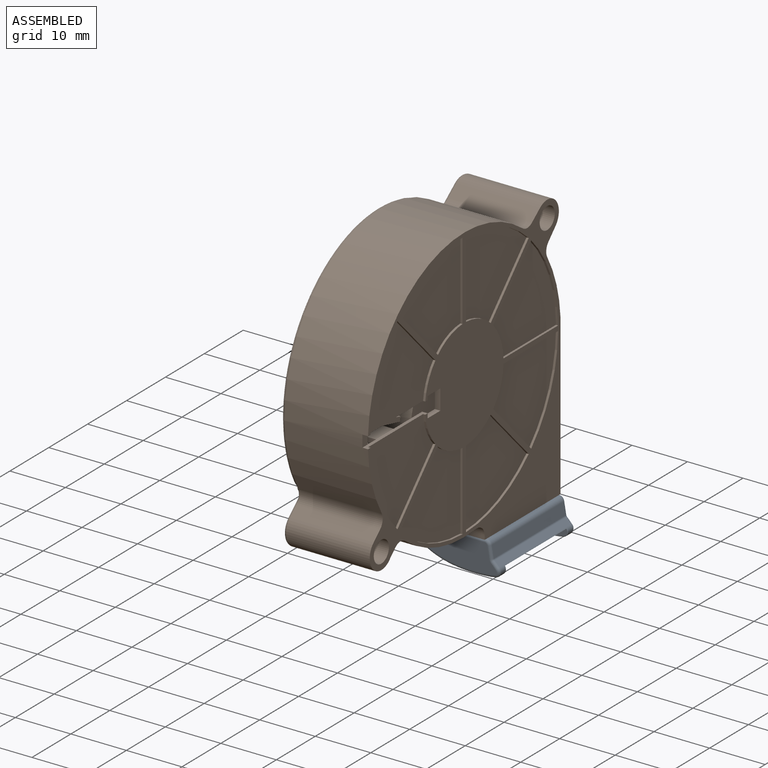
[diagram: assembled view]
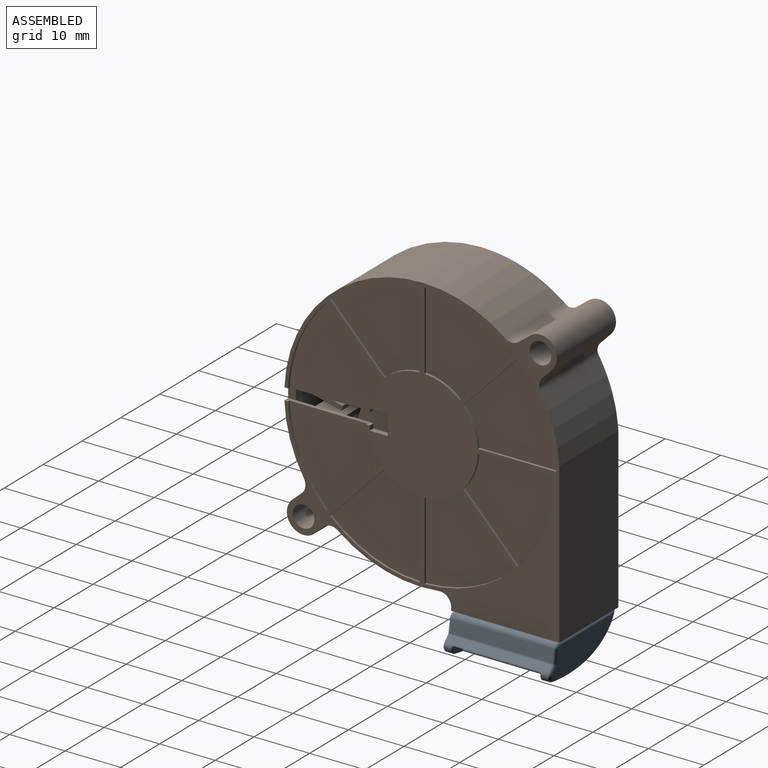
[diagram: assembled view, second angle]
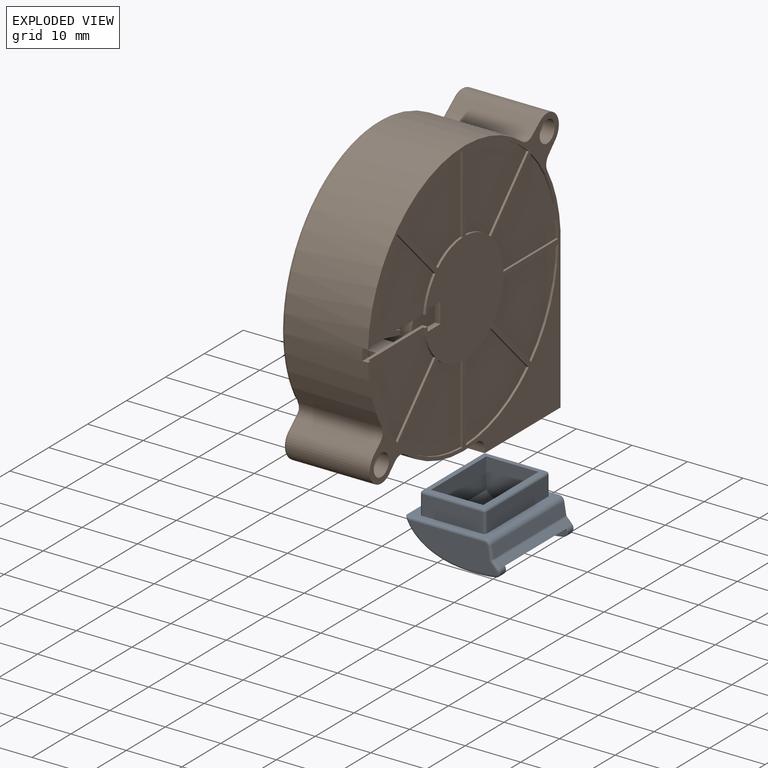
[diagram: exploded view]
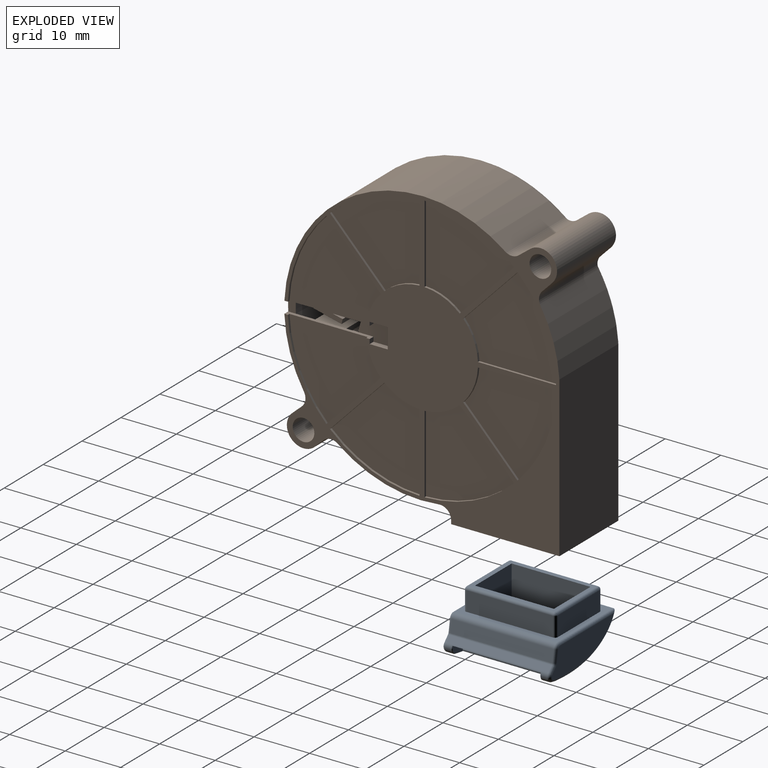
[diagram: exploded view, second angle]
ASSEMBLY  parts=2 mates=3
PART A: 67 faces, bbox 17.1x10.2x19.4 mm
  f0: plane 15.8x5.77mm, normal (0.27,0.96,0), area 94.6mm2, adj f6,f7,f15,f62
  f1: plane 1.2x0.82mm, normal (0.19,-0.98,0), area 1mm2, adj f9,f28,f41,f66
  f2: plane 15.86x5.17mm, normal (0,0,1), area 61.3mm2, adj f36,f37,f39,f40,f41,f42,f43,f56
  f3: plane 15.86x5.17mm, normal (0,0,-1), area 61.3mm2, adj f29,f30,f31,f32,f33,f34,f35,f58
  f4: plane 3.41x0.8mm, normal (0.99,-0.13,0), area 2.4mm2, adj f6,f13,f23,f27
  f5: plane 3.83x0.8mm, normal (0,-1,0), area 3.1mm2, adj f7,f17,f25,f26
  f6: plane 9.51x4.9mm, normal (0,0,-1), area 27.7mm2, adj f0,f4,f9,f13,f14,f15,f25,f27
  f7: plane 9.51x6.1mm, normal (0,0,1), area 33.3mm2, adj f0,f5,f9,f13,f14,f15,f25,f26
  f8: plane 18.4x14.36mm, normal (0,1,0), area 68.5mm2, adj f9,f19,f20,f21,f22,f31,f36,f44
  f9: extruded ~18.4x15.39mm, area 309.8mm2, adj f1,f6,f7,f8,f10,f29,f39,f61
  f10: plane 1.2x0.82mm, normal (0.19,-0.98,0), area 1mm2, adj f9,f28,f30,f64
  f11: plane 18.4x0.93mm, normal (0.72,0.69,0), area 23.8mm2, adj f28,f34,f38,f42
  f12: plane 18.4x2.14mm, normal (0.99,0.17,0), area 40mm2, adj f33,f37,f38,f57
  f13: extruded ~15.8x5.15mm, area 83.6mm2, adj f4,f6,f7,f15,f16,f17,f23,f26
  f14: plane 15.8x0.83mm, normal (-0.99,-0.17,0), area 13.3mm2, adj f6,f7,f25,f60
  f15: cylinder r=5mm len=15.8mm, axis (0,0,-1), area 4.6mm2, adj f0,f6,f7,f13
  f16: plane 14.2x5.42mm, normal (1,0,0), area 76.9mm2, adj f13,f17,f23,f24
  f17: plane 9.4x7.81mm, normal (0,0,1), area 51.6mm2, adj f5,f13,f16,f18,f24,f25,f26
  f18: plane 14.2x4.47mm, normal (-1,0,0), area 63.5mm2, adj f17,f23,f24,f25
  f19: plane 10.8x3.5mm, normal (0,0,-1), area 37.8mm2, adj f8,f46,f52,f55
  f20: plane 15.6x3.5mm, normal (-1,0,0), area 54.6mm2, adj f8,f49,f53,f55
  f21: plane 10.8x3.5mm, normal (0,0,1), area 37.8mm2, adj f8,f44,f48,f49
  f22: plane 15.6x3.5mm, normal (1,0,0), area 54.6mm2, adj f8,f44,f46,f47
  f23: plane 9.4x7.81mm, normal (0,0,-1), area 53.3mm2, adj f4,f13,f16,f18,f24,f25,f27
  f24: plane 15.6x10.8mm, normal (0,1,0), area 35mm2, adj f16,f17,f18,f23,f47,f48,f52,f53
  f25: plane 15.8x1.91mm, normal (-0.64,-0.76,0), area 28.1mm2, adj f5,f6,f7,f14,f17,f18,f23,f27
  f26: plane 3.81x0.8mm, normal (0.99,-0.13,0), area 3.1mm2, adj f5,f7,f13,f17
  f27: plane 5.41x0.8mm, normal (0,-0.71,-0.71), area 5.5mm2, adj f4,f6,f23,f25
  f28: cylinder r=1mm len=18.4mm, axis (0,0,-1), area 7.8mm2, adj f1,f10,f11,f32,f43,f59,f63,f65
  f29: bspline ~17.03x6.29mm, area 13.5mm2, adj f3,f9,f30,f31
  f30: cylinder r=0.5mm len=0.91mm, axis (0.98,0.19,0), area 0.6mm2, adj f3,f10,f29,f32
  f31: cylinder r=0.5mm len=14.36mm, axis (-1,0,0), area 11mm2, adj f3,f8,f29,f58
  f32: torus R=0.5mm, axis (0,0,1), area 1.4mm2, adj f3,f28,f30,f34
  f33: cylinder r=0.5mm len=2.23mm, axis (-0.17,0.99,0), area 1.7mm2, adj f3,f12,f35,f58
  f34: cylinder r=0.5mm len=1.28mm, axis (-0.69,0.72,0), area 1mm2, adj f3,f11,f32,f35
  f35: torus R=1mm, axis (0,0,1), area 0.3mm2, adj f3,f33,f34,f38
  f36: cylinder r=0.5mm len=14.36mm, axis (1,0,0), area 11mm2, adj f2,f8,f39,f56
  f37: cylinder r=0.5mm len=2.23mm, axis (0.17,-0.99,0), area 1.7mm2, adj f2,f12,f40,f56
  f38: cylinder r=0.5mm len=18.4mm, axis (0,0,1), area 5.5mm2, adj f11,f12,f35,f40
  f39: bspline ~17.03x6.29mm, area 13.5mm2, adj f2,f9,f36,f41
  f40: torus R=1mm, axis (0,0,1), area 0.3mm2, adj f2,f37,f38,f42
  f41: cylinder r=0.5mm len=0.91mm, axis (-0.98,-0.19,0), area 0.6mm2, adj f1,f2,f39,f43
  f42: cylinder r=0.5mm len=1.28mm, axis (0.69,-0.72,0), area 1mm2, adj f2,f11,f40,f43
  f43: torus R=0.5mm, axis (0,0,1), area 1.4mm2, adj f2,f28,f41,f42
  f44: cylinder r=0.5mm len=3.5mm, axis (0,1,0), area 2.7mm2, adj f8,f21,f22,f45
  f45: sphere r=0.5mm, area 0.2mm2, adj f44,f47,f48
  f46: cylinder r=0.5mm len=3.5mm, axis (0,-1,0), area 2.7mm2, adj f8,f19,f22,f50
  f47: cylinder r=0.5mm len=15.6mm, axis (0,0,1), area 12.3mm2, adj f22,f24,f45,f50
  f48: cylinder r=0.5mm len=10.8mm, axis (-1,0,0), area 8.5mm2, adj f21,f24,f45,f51
  f49: cylinder r=0.5mm len=3.5mm, axis (0,-1,0), area 2.7mm2, adj f8,f20,f21,f51
  f50: sphere r=0.5mm, area 0.2mm2, adj f46,f47,f52
  f51: sphere r=0.5mm, area 0.5mm2, adj f48,f49,f53
  f52: cylinder r=0.5mm len=10.8mm, axis (1,0,0), area 8.5mm2, adj f19,f24,f50,f54
  f53: cylinder r=0.5mm len=15.6mm, axis (0,0,-1), area 12.3mm2, adj f20,f24,f51,f54
  f54: sphere r=0.5mm, area 0.5mm2, adj f52,f53,f55
  f55: cylinder r=0.5mm len=3.5mm, axis (0,1,0), area 2.7mm2, adj f8,f19,f20,f54
  f56: torus R=0.5mm, axis (0,0,1), area 0.9mm2, adj f2,f36,f37,f57
  f57: cylinder r=1mm len=18.4mm, axis (0,0,-1), area 25.8mm2, adj f8,f12,f56,f58
  f58: torus R=0.5mm, axis (0,0,1), area 0.9mm2, adj f3,f31,f33,f57
  f59: plane 16.01x2.61mm, normal (-0.32,-0.95,0), area 43.4mm2, adj f6,f7,f28,f60,f63,f65
  f60: cylinder r=2mm len=15.8mm, axis (0,0,1), area 17.1mm2, adj f6,f7,f14,f59
  f61: plane 15.8x0.1mm, normal (0.96,-0.27,0), area 1.7mm2, adj f6,f7,f9,f62
  f62: cylinder r=0.3mm len=15.8mm, axis (0,0,1), area 7.4mm2, adj f0,f6,f7,f61
  f63: cone r=0.9mm half-angle=45deg, axis (0,0,-1), area 0.3mm2, adj f7,f28,f59,f64
  f64: plane 1.81x0.35mm, normal (0.13,-0.69,0.71), area 0.2mm2, adj f7,f9,f10,f63
  f65: cone r=0.9mm half-angle=45deg, axis (0,0,1), area 0.3mm2, adj f6,f28,f59,f66
  f66: plane 1.81x0.35mm, normal (0.13,-0.69,-0.71), area 0.2mm2, adj f1,f6,f9,f65
PART B: 302 faces, bbox 15.5x53.7x54.1 mm
  f0: plane 50.66x46.83mm, normal (-1,0,0), area 1326.1mm2, adj f60,f68,f69,f71,f97,f98,f99,f100
  f1: cylinder r=24.79mm len=39.77mm, axis (1,0,0), area 1024.1mm2, adj f8,f83,f93,f95,f292,f294,f295
  f2: cylinder r=10.09mm len=5.8mm, axis (1,0,0), area 2.6mm2, adj f4,f8,f280,f294
  f3: cylinder r=24.15mm len=15.92mm, axis (1,0,0), area 7.1mm2, adj f4,f8,f280,f294
  f4: plane 16.7x15.92mm, normal (1,0,0), area 170.4mm2, adj f2,f3,f280,f294
  f5: cylinder r=10.09mm len=5.72mm, axis (1,0,0), area 2.6mm2, adj f7,f8,f291,f295
  f6: cylinder r=24.15mm len=15.84mm, axis (1,0,0), area 7.1mm2, adj f7,f8,f291,f295
  f7: plane 16.69x15.84mm, normal (1,0,0), area 169.2mm2, adj f5,f6,f291,f295
  f8: plane 52.02x49.56mm, normal (1,0,0), area 724.9mm2, adj f1,f2,f3,f5,f6,f53,f54,f55
  f9: plane 5.21x1.21mm, normal (-1,0,0), area 4.4mm2, adj f152,f153,f154,f237
  f10: plane 5.22x2mm, normal (-1,0,0), area 4.4mm2, adj f155,f156,f157,f238
  f11: plane 5.1x2.73mm, normal (-1,0,0), area 4.4mm2, adj f158,f159,f160,f239
  f12: plane 4.86x3.4mm, normal (-1,0,0), area 4.4mm2, adj f161,f162,f163,f240
  f13: plane 4.5x3.99mm, normal (-1,0,0), area 4.4mm2, adj f164,f165,f166,f241
  f14: plane 4.47x4.02mm, normal (-1,0,0), area 4.4mm2, adj f167,f168,f169,f242
  f15: plane 4.85x3.45mm, normal (-1,0,0), area 4.4mm2, adj f170,f171,f172,f243
  f16: plane 5.1x2.79mm, normal (-1,0,0), area 4.4mm2, adj f173,f174,f175,f244
  f17: plane 5.23x2.07mm, normal (-1,0,0), area 4.4mm2, adj f176,f177,f178,f245
  f18: plane 5.24x1.29mm, normal (-1,0,0), area 4.4mm2, adj f179,f180,f181,f246
  f19: plane 5.21x1.21mm, normal (-1,0,0), area 4.4mm2, adj f182,f183,f184,f247
  f20: plane 5.22x2mm, normal (-1,0,0), area 4.4mm2, adj f185,f186,f187,f248
  f21: plane 5.1x2.73mm, normal (-1,0,0), area 4.4mm2, adj f188,f189,f190,f249
  f22: plane 4.86x3.4mm, normal (-1,0,0), area 4.4mm2, adj f191,f192,f193,f250
  f23: plane 4.5x3.99mm, normal (-1,0,0), area 4.4mm2, adj f194,f195,f196,f251
  f24: plane 4.47x4.02mm, normal (-1,0,0), area 4.4mm2, adj f197,f198,f199,f252
  f25: plane 4.85x3.45mm, normal (-1,0,0), area 4.4mm2, adj f200,f201,f202,f253
  f26: plane 5.1x2.79mm, normal (-1,0,0), area 4.4mm2, adj f203,f204,f205,f254
  f27: plane 5.23x2.07mm, normal (-1,0,0), area 4.4mm2, adj f206,f207,f208,f255
  f28: plane 5.24x1.29mm, normal (-1,0,0), area 4.4mm2, adj f209,f210,f211,f256
  f29: plane 5.21x1.21mm, normal (-1,0,0), area 4.4mm2, adj f212,f213,f214,f257
  f30: plane 5.22x2mm, normal (-1,0,0), area 4.4mm2, adj f97,f215,f216,f218
  f31: plane 5.1x2.73mm, normal (-1,0,0), area 4.4mm2, adj f98,f99,f100,f219
  f32: plane 4.86x3.4mm, normal (-1,0,0), area 4.4mm2, adj f101,f102,f103,f220
  f33: plane 4.5x3.99mm, normal (-1,0,0), area 4.4mm2, adj f104,f105,f106,f221
  f34: plane 4.47x4.02mm, normal (-1,0,0), area 4.4mm2, adj f107,f108,f109,f222
  f35: plane 4.85x3.45mm, normal (-1,0,0), area 4.4mm2, adj f110,f111,f112,f223
  f36: plane 5.1x2.79mm, normal (-1,0,0), area 4.4mm2, adj f113,f114,f115,f224
  f37: plane 5.23x2.07mm, normal (-1,0,0), area 4.4mm2, adj f116,f117,f118,f225
  f38: plane 5.24x1.29mm, normal (-1,0,0), area 4.4mm2, adj f119,f120,f121,f226
  f39: plane 5.21x1.21mm, normal (-1,0,0), area 4.4mm2, adj f122,f123,f124,f227
  f40: plane 5.22x2mm, normal (-1,0,0), area 4.4mm2, adj f125,f126,f127,f228
  f41: plane 5.1x2.73mm, normal (-1,0,0), area 4.4mm2, adj f128,f129,f130,f229
  f42: plane 4.86x3.4mm, normal (-1,0,0), area 4.4mm2, adj f131,f132,f133,f230
  f43: plane 4.5x3.99mm, normal (-1,0,0), area 4.4mm2, adj f134,f135,f136,f231
  f44: plane 4.47x4.02mm, normal (-1,0,0), area 4.4mm2, adj f137,f138,f139,f232
  f45: plane 4.85x3.45mm, normal (-1,0,0), area 4.4mm2, adj f140,f141,f142,f233
  f46: plane 5.1x2.79mm, normal (-1,0,0), area 4.4mm2, adj f143,f144,f145,f234
  f47: plane 5.23x2.07mm, normal (-1,0,0), area 4.4mm2, adj f146,f147,f148,f235
  f48: bspline ~2.43x0.93mm, area 1mm2, adj f83,f84,f95,f96
  f49: bspline ~2.52x1.24mm, area 1.3mm2, adj f81,f83,f93,f94
  f50: bspline ~2.41x1.07mm, area 1mm2, adj f78,f80,f91,f92
  f51: bspline ~2.59x1.16mm, area 1.3mm2, adj f75,f77,f89,f90
  f52: bspline ~2.52x2.49mm, area 2.1mm2, adj f73,f75,f87,f88
  f53: cylinder r=3mm len=15mm, axis (1,0,0), area 149.7mm2, adj f8,f54,f64,f79
  f54: plane 15x1.64mm, normal (0,-0.67,0.75), area 33mm2, adj f8,f53,f81,f93
  f55: plane 15x2.08mm, normal (0,-0.61,0.79), area 39.5mm2, adj f8,f56,f84,f95
  f56: cylinder r=3mm len=15mm, axis (1,0,0), area 135mm2, adj f8,f55,f57,f82
  f57: plane 15x1.89mm, normal (0,0.72,-0.7), area 39.5mm2, adj f8,f56,f80,f91
  f58: cylinder r=24.79mm len=15mm, axis (1,0,0), area 219.4mm2, adj f8,f59,f78,f91
  f59: plane 25.83x15mm, normal (0,1,0), area 387.5mm2, adj f8,f58,f60,f76
  f60: plane 19.5x15mm, normal (0,0,-1), area 52.1mm2, adj f0,f8,f59,f61,f68,f69,f70,f74
  f61: plane 15x0.64mm, normal (0,-1,0), area 9.5mm2, adj f8,f60,f73,f87
  f62: cylinder r=24.79mm len=18.18mm, axis (1,0,0), area 290.1mm2, adj f8,f75,f87,f89
  f63: cylinder r=1.95mm len=15mm, axis (1,0,0), area 183.8mm2, adj f8,f85
  f64: plane 15x1.22mm, normal (0,0.68,-0.73), area 25mm2, adj f8,f53,f77,f89
  f65: cylinder r=1.95mm len=15mm, axis (1,0,0), area 183.8mm2, adj f8,f86
  f66: plane 51.02x48.59mm, normal (-1,0,0), area 1194.2mm2, adj f72,f73,f74,f75,f76,f77,f78,f79
  f67: cylinder r=16mm len=32mm, axis (-1,0,0), area 50.3mm2, adj f70,f72
  f68: plane 26.45x13.5mm, normal (0,-1,0), area 357.1mm2, adj f0,f60,f70,f71
  f69: plane 13.5x4.48mm, normal (0,1,0), area 60.5mm2, adj f0,f60,f70,f71
  f70: plane 50.66x46.85mm, normal (1,0,0), area 1103.8mm2, adj f60,f67,f68,f69,f71
  f71: cylinder r=23.43mm len=46.85mm, axis (1,0,0), area 1577.3mm2, adj f0,f68,f69,f70,f292
  f72: torus R=16.5mm, axis (-1,0,0), area 79.9mm2, adj f66,f67
  f73: cylinder r=0.5mm len=3.63mm, axis (0,0,-1), area 1.1mm2, adj f52,f61,f66,f74,f88
  f74: cylinder r=0.5mm len=19.5mm, axis (0,1,0), area 14.9mm2, adj f60,f66,f73,f76
  f75: torus R=24.29mm, axis (-1,0,0), area 16.7mm2, adj f51,f52,f62,f66,f88,f90
  f76: cylinder r=0.5mm len=25.85mm, axis (0,0,1), area 20.1mm2, adj f59,f66,f74,f78
  f77: cylinder r=0.5mm len=3.21mm, axis (0,0.73,0.68), area 2mm2, adj f51,f64,f66,f79,f90
  f78: torus R=24.29mm, axis (-1,0,0), area 12mm2, adj f50,f58,f66,f76,f92
  f79: torus R=2.5mm, axis (-1,0,0), area 7.4mm2, adj f53,f66,f77,f81
  f80: cylinder r=0.5mm len=3.66mm, axis (0,0.7,0.72), area 2.7mm2, adj f50,f57,f66,f82,f92
  f81: cylinder r=0.5mm len=3.59mm, axis (0,-0.75,-0.67), area 2.4mm2, adj f49,f54,f66,f79,f94
  f82: torus R=2.5mm, axis (-1,0,0), area 6.6mm2, adj f56,f66,f80,f84
  f83: torus R=24.29mm, axis (-1,0,0), area 54.6mm2, adj f1,f48,f49,f66,f94,f96
  f84: cylinder r=0.5mm len=3.96mm, axis (0,-0.79,-0.61), area 2.7mm2, adj f48,f55,f66,f82,f96
  f85: torus R=2.45mm, axis (-1,0,0), area 10.5mm2, adj f63,f66
  f86: torus R=2.45mm, axis (-1,0,0), area 10.5mm2, adj f65,f66
  f87: cylinder r=2mm len=15mm, axis (1,0,0), area 50.8mm2, adj f8,f52,f61,f62
  f88: bspline ~1.93x1.78mm, area 0.5mm2, adj f52,f73,f75
  f89: cylinder r=2mm len=15mm, axis (1,0,0), area 42.2mm2, adj f8,f51,f62,f64
  f90: bspline ~1.77x1.28mm, area 0.4mm2, adj f51,f75,f77
  f91: cylinder r=2mm len=15mm, axis (1,0,0), area 39.2mm2, adj f8,f50,f57,f58
  f92: bspline ~1.87x1.35mm, area 0.5mm2, adj f50,f78,f80
  f93: cylinder r=2mm len=15mm, axis (1,0,0), area 41.5mm2, adj f1,f8,f49,f54
  f94: bspline ~1.74x1.33mm, area 0.4mm2, adj f49,f81,f83
  f95: cylinder r=2mm len=15mm, axis (1,0,0), area 39.2mm2, adj f1,f8,f48,f55
  f96: bspline ~1.88x1.25mm, area 0.5mm2, adj f48,f83,f84
  f97: plane 12x5.03mm, normal (0,-0.23,-0.97), area 61.9mm2, adj f0,f30,f216,f218
  f98: plane 12x4.8mm, normal (0,0.38,0.93), area 62.2mm2, adj f0,f31,f99,f219
  f99: plane 12x0.79mm, normal (0,0.93,-0.38), area 10.2mm2, adj f0,f31,f98,f100
  f100: plane 12x4.78mm, normal (0,-0.38,-0.93), area 61.9mm2, adj f0,f31,f99,f219
  f101: plane 12x4.44mm, normal (0,0.52,0.86), area 62.2mm2, adj f0,f32,f102,f220
  f102: plane 12x0.73mm, normal (0,0.86,-0.52), area 10.2mm2, adj f0,f32,f101,f103
  f103: plane 12x4.42mm, normal (0,-0.52,-0.86), area 61.9mm2, adj f0,f32,f102,f220
  f104: plane 12x3.97mm, normal (0,0.64,0.77), area 62.2mm2, adj f0,f33,f105,f221
  f105: plane 12x0.65mm, normal (0,0.77,-0.64), area 10.2mm2, adj f0,f33,f104,f106
  f106: plane 12x3.95mm, normal (0,-0.64,-0.77), area 61.9mm2, adj f0,f33,f105,f221
  f107: plane 12x3.92mm, normal (0,0.76,0.66), area 62.2mm2, adj f0,f34,f108,f222
  f108: plane 12x0.64mm, normal (0,0.66,-0.76), area 10.2mm2, adj f0,f34,f107,f109
  f109: plane 12x3.9mm, normal (0,-0.76,-0.66), area 61.9mm2, adj f0,f34,f108,f222
  f110: plane 12x4.4mm, normal (0,0.85,0.53), area 62.2mm2, adj f0,f35,f111,f223
  f111: plane 12x0.72mm, normal (0,0.53,-0.85), area 10.2mm2, adj f0,f35,f110,f112
  f112: plane 12x4.38mm, normal (0,-0.85,-0.53), area 61.9mm2, adj f0,f35,f111,f223
  f113: plane 12x4.77mm, normal (0,0.92,0.39), area 62.2mm2, adj f0,f36,f114,f224
  f114: plane 12x0.78mm, normal (0,0.39,-0.92), area 10.2mm2, adj f0,f36,f113,f115
  f115: plane 12x4.75mm, normal (0,-0.92,-0.39), area 61.9mm2, adj f0,f36,f114,f224
  f116: plane 12x5.03mm, normal (0,0.97,0.24), area 62.2mm2, adj f0,f37,f117,f225
  f117: plane 12x0.82mm, normal (0,0.24,-0.97), area 10.2mm2, adj f0,f37,f116,f118
  f118: plane 12x5.01mm, normal (0,-0.97,-0.24), area 61.9mm2, adj f0,f37,f117,f225
  f119: plane 12x5.16mm, normal (0,1,0.09), area 62.2mm2, adj f0,f38,f120,f226
  f120: plane 12x0.85mm, normal (0,0.09,-1), area 10.2mm2, adj f0,f38,f119,f121
  f121: plane 12x5.14mm, normal (0,-1,-0.09), area 61.9mm2, adj f0,f38,f120,f226
  f122: plane 12x5.17mm, normal (0,1,-0.07), area 62.2mm2, adj f0,f39,f123,f227
  f123: plane 12x0.85mm, normal (0,-0.07,-1), area 10.2mm2, adj f0,f39,f122,f124
  f124: plane 12x5.15mm, normal (0,-1,0.07), area 61.9mm2, adj f0,f39,f123,f227
  f125: plane 12x5.05mm, normal (0,0.97,-0.23), area 62.2mm2, adj f0,f40,f126,f228
  f126: plane 12x0.83mm, normal (0,-0.23,-0.97), area 10.2mm2, adj f0,f40,f125,f127
  f127: plane 12x5.03mm, normal (0,-0.97,0.23), area 61.9mm2, adj f0,f40,f126,f228
  f128: plane 12x4.8mm, normal (0,0.93,-0.38), area 62.2mm2, adj f0,f41,f129,f229
  f129: plane 12x0.79mm, normal (0,-0.38,-0.93), area 10.2mm2, adj f0,f41,f128,f130
  f130: plane 12x4.78mm, normal (0,-0.93,0.38), area 61.9mm2, adj f0,f41,f129,f229
  f131: plane 12x4.44mm, normal (0,0.86,-0.52), area 62.2mm2, adj f0,f42,f132,f230
  f132: plane 12x0.73mm, normal (0,-0.52,-0.86), area 10.2mm2, adj f0,f42,f131,f133
  f133: plane 12x4.42mm, normal (0,-0.86,0.52), area 61.9mm2, adj f0,f42,f132,f230
  f134: plane 12x3.97mm, normal (0,0.77,-0.64), area 62.2mm2, adj f0,f43,f135,f231
  f135: plane 12x0.65mm, normal (0,-0.64,-0.77), area 10.2mm2, adj f0,f43,f134,f136
  f136: plane 12x3.95mm, normal (0,-0.77,0.64), area 61.9mm2, adj f0,f43,f135,f231
  f137: plane 12x3.92mm, normal (0,0.66,-0.76), area 62.2mm2, adj f0,f44,f138,f232
  f138: plane 12x0.64mm, normal (0,-0.76,-0.66), area 10.2mm2, adj f0,f44,f137,f139
  f139: plane 12x3.9mm, normal (0,-0.66,0.76), area 61.9mm2, adj f0,f44,f138,f232
  f140: plane 12x4.4mm, normal (0,0.53,-0.85), area 62.2mm2, adj f0,f45,f141,f233
  f141: plane 12x0.72mm, normal (0,-0.85,-0.53), area 10.2mm2, adj f0,f45,f140,f142
  f142: plane 12x4.38mm, normal (0,-0.53,0.85), area 61.9mm2, adj f0,f45,f141,f233
  f143: plane 12x4.77mm, normal (0,0.39,-0.92), area 62.2mm2, adj f0,f46,f144,f234
  f144: plane 12x0.78mm, normal (0,-0.92,-0.39), area 10.2mm2, adj f0,f46,f143,f145
  f145: plane 12x4.75mm, normal (0,-0.39,0.92), area 61.9mm2, adj f0,f46,f144,f234
  f146: plane 12x5.03mm, normal (0,0.24,-0.97), area 62.2mm2, adj f0,f47,f147,f235
  f147: plane 12x0.82mm, normal (0,-0.97,-0.24), area 10.2mm2, adj f0,f47,f146,f148
  f148: plane 12x5.01mm, normal (0,-0.24,0.97), area 61.9mm2, adj f0,f47,f147,f235
  f149: plane 12x5.16mm, normal (0,0.09,-1), area 62.2mm2, adj f0,f150,f217,f236
  f150: plane 12x0.85mm, normal (0,-1,-0.09), area 10.2mm2, adj f0,f149,f151,f217
  f151: plane 12x5.14mm, normal (0,-0.09,1), area 61.9mm2, adj f0,f150,f217,f236
  f152: plane 12x5.17mm, normal (0,-0.07,-1), area 62.2mm2, adj f0,f9,f153,f237
  f153: plane 12x0.85mm, normal (0,-1,0.07), area 10.2mm2, adj f0,f9,f152,f154
  f154: plane 12x5.15mm, normal (0,0.07,1), area 61.9mm2, adj f0,f9,f153,f237
  f155: plane 12x5.05mm, normal (0,-0.23,-0.97), area 62.2mm2, adj f10,f156,f238,f293
  f156: plane 12x0.83mm, normal (0,-0.97,0.23), area 10.2mm2, adj f0,f10,f155,f157,f293
  f157: plane 12x5.03mm, normal (0,0.23,0.97), area 61.9mm2, adj f0,f10,f156,f238,f293
  f158: plane 12x4.8mm, normal (0,-0.38,-0.93), area 62.2mm2, adj f0,f11,f159,f239
  f159: plane 12x0.79mm, normal (0,-0.93,0.38), area 10.2mm2, adj f0,f11,f158,f160
  f160: plane 12x4.78mm, normal (0,0.38,0.93), area 61.9mm2, adj f0,f11,f159,f239
  f161: plane 12x4.44mm, normal (0,-0.52,-0.86), area 62.2mm2, adj f0,f12,f162,f240
  f162: plane 12x0.73mm, normal (0,-0.86,0.52), area 10.2mm2, adj f0,f12,f161,f163
  f163: plane 12x4.42mm, normal (0,0.52,0.86), area 61.9mm2, adj f0,f12,f162,f240
  f164: plane 12x3.97mm, normal (0,-0.64,-0.77), area 62.2mm2, adj f0,f13,f165,f241
  f165: plane 12x0.65mm, normal (0,-0.77,0.64), area 10.2mm2, adj f0,f13,f164,f166
  f166: plane 12x3.95mm, normal (0,0.64,0.77), area 61.9mm2, adj f0,f13,f165,f241
  f167: plane 12x3.92mm, normal (0,-0.76,-0.66), area 62.2mm2, adj f0,f14,f168,f242
  f168: plane 12x0.64mm, normal (0,-0.66,0.76), area 10.2mm2, adj f0,f14,f167,f169
  f169: plane 12x3.9mm, normal (0,0.76,0.66), area 61.9mm2, adj f0,f14,f168,f242
  f170: plane 12x4.4mm, normal (0,-0.85,-0.53), area 62.2mm2, adj f0,f15,f171,f243
  f171: plane 12x0.72mm, normal (0,-0.53,0.85), area 10.2mm2, adj f0,f15,f170,f172
  f172: plane 12x4.38mm, normal (0,0.85,0.53), area 61.9mm2, adj f0,f15,f171,f243
  f173: plane 12x4.77mm, normal (0,-0.92,-0.39), area 62.2mm2, adj f0,f16,f174,f244
  f174: plane 12x0.78mm, normal (0,-0.39,0.92), area 10.2mm2, adj f0,f16,f173,f175
  f175: plane 12x4.75mm, normal (0,0.92,0.39), area 61.9mm2, adj f0,f16,f174,f244
  f176: plane 12x5.03mm, normal (0,-0.97,-0.24), area 62.2mm2, adj f0,f17,f177,f245
  f177: plane 12x0.82mm, normal (0,-0.24,0.97), area 10.2mm2, adj f0,f17,f176,f178
  f178: plane 12x5.01mm, normal (0,0.97,0.24), area 61.9mm2, adj f0,f17,f177,f245
  f179: plane 12x5.16mm, normal (0,-1,-0.09), area 62.2mm2, adj f0,f18,f180,f246
  f180: plane 12x0.85mm, normal (0,-0.09,1), area 10.2mm2, adj f0,f18,f179,f181
  f181: plane 12x5.14mm, normal (0,1,0.09), area 61.9mm2, adj f0,f18,f180,f246
  f182: plane 12x5.17mm, normal (0,-1,0.07), area 62.2mm2, adj f0,f19,f183,f247
  f183: plane 12x0.85mm, normal (0,0.07,1), area 10.2mm2, adj f0,f19,f182,f184
  f184: plane 12x5.15mm, normal (0,1,-0.07), area 61.9mm2, adj f0,f19,f183,f247
  f185: plane 12x5.05mm, normal (0,-0.97,0.23), area 62.2mm2, adj f0,f20,f186,f248
  f186: plane 12x0.83mm, normal (0,0.23,0.97), area 10.2mm2, adj f0,f20,f185,f187
  f187: plane 12x5.03mm, normal (0,0.97,-0.23), area 61.9mm2, adj f0,f20,f186,f248
  f188: plane 12x4.8mm, normal (0,-0.93,0.38), area 62.2mm2, adj f0,f21,f189,f249
  f189: plane 12x0.79mm, normal (0,0.38,0.93), area 10.2mm2, adj f0,f21,f188,f190
  f190: plane 12x4.78mm, normal (0,0.93,-0.38), area 61.9mm2, adj f0,f21,f189,f249
  f191: plane 12x4.44mm, normal (0,-0.86,0.52), area 62.2mm2, adj f0,f22,f192,f250
  f192: plane 12x0.73mm, normal (0,0.52,0.86), area 10.2mm2, adj f0,f22,f191,f193
  f193: plane 12x4.42mm, normal (0,0.86,-0.52), area 61.9mm2, adj f0,f22,f192,f250
  f194: plane 12x3.97mm, normal (0,-0.77,0.64), area 62.2mm2, adj f0,f23,f195,f251
  f195: plane 12x0.65mm, normal (0,0.64,0.77), area 10.2mm2, adj f0,f23,f194,f196
  f196: plane 12x3.95mm, normal (0,0.77,-0.64), area 61.9mm2, adj f0,f23,f195,f251
  f197: plane 12x3.92mm, normal (0,-0.66,0.76), area 62.2mm2, adj f0,f24,f198,f252
  f198: plane 12x0.64mm, normal (0,0.76,0.66), area 10.2mm2, adj f0,f24,f197,f199
  f199: plane 12x3.9mm, normal (0,0.66,-0.76), area 61.9mm2, adj f0,f24,f198,f252
  f200: plane 12x4.4mm, normal (0,-0.53,0.85), area 62.2mm2, adj f0,f25,f201,f253
  f201: plane 12x0.72mm, normal (0,0.85,0.53), area 10.2mm2, adj f0,f25,f200,f202
  f202: plane 12x4.38mm, normal (0,0.53,-0.85), area 61.9mm2, adj f0,f25,f201,f253
  f203: plane 12x4.77mm, normal (0,-0.39,0.92), area 62.2mm2, adj f0,f26,f204,f254
  f204: plane 12x0.78mm, normal (0,0.92,0.39), area 10.2mm2, adj f0,f26,f203,f205
  f205: plane 12x4.75mm, normal (0,0.39,-0.92), area 61.9mm2, adj f0,f26,f204,f254
  f206: plane 12x5.03mm, normal (0,-0.24,0.97), area 62.2mm2, adj f0,f27,f207,f255
  f207: plane 12x0.82mm, normal (0,0.97,0.24), area 10.2mm2, adj f0,f27,f206,f208
  f208: plane 12x5.01mm, normal (0,0.24,-0.97), area 61.9mm2, adj f0,f27,f207,f255
  f209: plane 12x5.16mm, normal (0,-0.09,1), area 62.2mm2, adj f0,f28,f210,f256
  f210: plane 12x0.85mm, normal (0,1,0.09), area 10.2mm2, adj f0,f28,f209,f211
  f211: plane 12x5.14mm, normal (0,0.09,-1), area 61.9mm2, adj f0,f28,f210,f256
  f212: plane 12x5.17mm, normal (0,0.07,1), area 62.2mm2, adj f0,f29,f213,f257
  f213: plane 12x0.85mm, normal (0,1,-0.07), area 10.2mm2, adj f0,f29,f212,f214
  f214: plane 12x5.15mm, normal (0,-0.07,-1), area 61.9mm2, adj f0,f29,f213,f257
  f215: plane 12x5.05mm, normal (0,0.23,0.97), area 62.2mm2, adj f0,f30,f216,f218
  f216: plane 12x0.83mm, normal (0,0.97,-0.23), area 10.2mm2, adj f0,f30,f97,f215
  f217: plane 5.24x1.29mm, normal (-1,0,0), area 4.4mm2, adj f149,f150,f151,f236
  f218: cylinder r=14.12mm len=12mm, axis (-1,0,0), area 10.2mm2, adj f0,f30,f97,f215
  f219: cylinder r=14.12mm len=12mm, axis (-1,0,0), area 10.2mm2, adj f0,f31,f98,f100
  f220: cylinder r=14.12mm len=12mm, axis (-1,0,0), area 10.2mm2, adj f0,f32,f101,f103
  f221: cylinder r=14.12mm len=12mm, axis (-1,0,0), area 10.2mm2, adj f0,f33,f104,f106
  f222: cylinder r=14.12mm len=12mm, axis (-1,0,0), area 10.2mm2, adj f0,f34,f107,f109
  f223: cylinder r=14.12mm len=12mm, axis (-1,0,0), area 10.2mm2, adj f0,f35,f110,f112
  f224: cylinder r=14.12mm len=12mm, axis (-1,0,0), area 10.2mm2, adj f0,f36,f113,f115
  f225: cylinder r=14.12mm len=12mm, axis (-1,0,0), area 10.2mm2, adj f0,f37,f116,f118
  f226: cylinder r=14.12mm len=12mm, axis (-1,0,0), area 10.2mm2, adj f0,f38,f119,f121
  f227: cylinder r=14.12mm len=12mm, axis (-1,0,0), area 10.2mm2, adj f0,f39,f122,f124
  f228: cylinder r=14.12mm len=12mm, axis (-1,0,0), area 10.2mm2, adj f0,f40,f125,f127
  f229: cylinder r=14.12mm len=12mm, axis (-1,0,0), area 10.2mm2, adj f0,f41,f128,f130
  f230: cylinder r=14.12mm len=12mm, axis (-1,0,0), area 10.2mm2, adj f0,f42,f131,f133
  f231: cylinder r=14.12mm len=12mm, axis (-1,0,0), area 10.2mm2, adj f0,f43,f134,f136
  f232: cylinder r=14.12mm len=12mm, axis (-1,0,0), area 10.2mm2, adj f0,f44,f137,f139
  f233: cylinder r=14.12mm len=12mm, axis (-1,0,0), area 10.2mm2, adj f0,f45,f140,f142
  f234: cylinder r=14.12mm len=12mm, axis (-1,0,0), area 10.2mm2, adj f0,f46,f143,f145
  f235: cylinder r=14.12mm len=12mm, axis (-1,0,0), area 10.2mm2, adj f0,f47,f146,f148
  f236: cylinder r=14.12mm len=12mm, axis (-1,0,0), area 10.2mm2, adj f0,f149,f151,f217
  f237: cylinder r=14.12mm len=12mm, axis (-1,0,0), area 10.2mm2, adj f0,f9,f152,f154
  f238: cylinder r=14.12mm len=12mm, axis (-1,0,0), area 10.2mm2, adj f10,f155,f157,f293
  f239: cylinder r=14.12mm len=12mm, axis (-1,0,0), area 10.2mm2, adj f0,f11,f158,f160
  f240: cylinder r=14.12mm len=12mm, axis (-1,0,0), area 10.2mm2, adj f0,f12,f161,f163
  f241: cylinder r=14.12mm len=12mm, axis (-1,0,0), area 10.2mm2, adj f0,f13,f164,f166
  f242: cylinder r=14.12mm len=12mm, axis (-1,0,0), area 10.2mm2, adj f0,f14,f167,f169
  f243: cylinder r=14.12mm len=12mm, axis (-1,0,0), area 10.2mm2, adj f0,f15,f170,f172
  f244: cylinder r=14.12mm len=12mm, axis (-1,0,0), area 10.2mm2, adj f0,f16,f173,f175
  f245: cylinder r=14.12mm len=12mm, axis (-1,0,0), area 10.2mm2, adj f0,f17,f176,f178
  f246: cylinder r=14.12mm len=12mm, axis (-1,0,0), area 10.2mm2, adj f0,f18,f179,f181
  f247: cylinder r=14.12mm len=12mm, axis (-1,0,0), area 10.2mm2, adj f0,f19,f182,f184
  f248: cylinder r=14.12mm len=12mm, axis (-1,0,0), area 10.2mm2, adj f0,f20,f185,f187
  f249: cylinder r=14.12mm len=12mm, axis (-1,0,0), area 10.2mm2, adj f0,f21,f188,f190
  f250: cylinder r=14.12mm len=12mm, axis (-1,0,0), area 10.2mm2, adj f0,f22,f191,f193
  f251: cylinder r=14.12mm len=12mm, axis (-1,0,0), area 10.2mm2, adj f0,f23,f194,f196
  f252: cylinder r=14.12mm len=12mm, axis (-1,0,0), area 10.2mm2, adj f0,f24,f197,f199
  f253: cylinder r=14.12mm len=12mm, axis (-1,0,0), area 10.2mm2, adj f0,f25,f200,f202
  f254: cylinder r=14.12mm len=12mm, axis (-1,0,0), area 10.2mm2, adj f0,f26,f203,f205
  f255: cylinder r=14.12mm len=12mm, axis (-1,0,0), area 10.2mm2, adj f0,f27,f206,f208
  f256: cylinder r=14.12mm len=12mm, axis (-1,0,0), area 10.2mm2, adj f0,f28,f209,f211
  f257: cylinder r=14.12mm len=12mm, axis (-1,0,0), area 10.2mm2, adj f0,f29,f212,f214
  f258: plane 20.07x20.07mm, normal (-1,0,0), area 316.4mm2, adj f259
  f259: cone r=10.04mm half-angle=5deg, axis (1,0,0), area 799.3mm2, adj f0,f258,f301
  f260: plane 14.07x0.4mm, normal (0,0,1), area 5.6mm2, adj f8,f261,f263,f264
  f261: cylinder r=24.15mm len=16.5mm, axis (1,0,0), area 7.3mm2, adj f8,f260,f262,f264
  f262: plane 10.12x9.77mm, normal (0,0.72,-0.69), area 5.6mm2, adj f8,f261,f263,f264
  f263: cylinder r=10.09mm len=6.38mm, axis (1,0,0), area 2.8mm2, adj f8,f260,f262,f264
  f264: plane 16.71x16.5mm, normal (1,0,0), area 178.4mm2, adj f260,f261,f262,f263
  f265: cylinder r=10.09mm len=6.34mm, axis (1,0,0), area 2.8mm2, adj f8,f266,f268,f269
  f266: plane 10.12x9.77mm, normal (0,-0.72,0.69), area 5.6mm2, adj f8,f265,f267,f269
  f267: cylinder r=24.15mm len=16.11mm, axis (1,0,0), area 7.1mm2, adj f8,f266,f268,f269
  f268: plane 14.07x0.4mm, normal (0,1,0), area 5.6mm2, adj f8,f265,f267,f269
  f269: plane 16.68x16.11mm, normal (1,0,0), area 174.3mm2, adj f265,f266,f267,f268
  f270: cylinder r=24.15mm len=16.11mm, axis (1,0,0), area 7.1mm2, adj f8,f271,f273,f274
  f271: plane 14.07x0.4mm, normal (0,-1,0), area 5.6mm2, adj f8,f270,f272,f274
  f272: cylinder r=10.09mm len=6.34mm, axis (1,0,0), area 2.8mm2, adj f8,f271,f273,f274
  f273: plane 10.12x9.77mm, normal (0,0.72,-0.69), area 5.6mm2, adj f8,f270,f272,f274
  f274: plane 16.68x16.11mm, normal (1,0,0), area 174.3mm2, adj f270,f271,f272,f273
  f275: cylinder r=24.15mm len=16.5mm, axis (1,0,0), area 7.3mm2, adj f8,f276,f278,f279
  f276: plane 14.07x0.4mm, normal (0,0,-1), area 5.6mm2, adj f8,f275,f277,f279
  f277: cylinder r=10.09mm len=6.38mm, axis (1,0,0), area 2.8mm2, adj f8,f276,f278,f279
  f278: plane 10.12x9.77mm, normal (0,0.72,0.69), area 5.6mm2, adj f8,f275,f277,f279
  f279: plane 16.71x16.5mm, normal (1,0,0), area 178.4mm2, adj f275,f276,f277,f278
  f280: plane 10.12x9.77mm, normal (0,-0.72,0.69), area 5.6mm2, adj f2,f3,f4,f8
  f281: plane 10.12x9.77mm, normal (0,-0.72,-0.69), area 5.6mm2, adj f8,f282,f284,f285
  f282: cylinder r=10.09mm len=6.34mm, axis (1,0,0), area 2.8mm2, adj f8,f281,f283,f285
  f283: plane 14.07x0.4mm, normal (0,1,0), area 5.6mm2, adj f8,f282,f284,f285
  f284: cylinder r=24.15mm len=16.11mm, axis (1,0,0), area 7.1mm2, adj f8,f281,f283,f285
  f285: plane 16.68x16.11mm, normal (1,0,0), area 174.3mm2, adj f281,f282,f283,f284
  f286: plane 14.07x0.4mm, normal (0,-1,0), area 5.6mm2, adj f8,f287,f289,f290
  f287: cylinder r=24.15mm len=16.11mm, axis (1,0,0), area 7.1mm2, adj f8,f286,f288,f290
  f288: plane 10.12x9.77mm, normal (0,0.72,0.69), area 5.6mm2, adj f8,f287,f289,f290
  f289: cylinder r=10.09mm len=6.34mm, axis (1,0,0), area 2.8mm2, adj f8,f286,f288,f290
  f290: plane 16.68x16.11mm, normal (1,0,0), area 174.3mm2, adj f286,f287,f288,f289
  f291: plane 10.12x9.77mm, normal (0,-0.72,-0.69), area 5.6mm2, adj f5,f6,f7,f8
  f292: plane 2.13x1.39mm, normal (1,0,0), area 2.9mm2, adj f1,f71,f294,f295
  f293: plane 5.22x1.6mm, normal (1,0,0), area 4mm2, adj f155,f156,f157,f238,f295
  f294: plane 15.35x1mm, normal (0,0,1), area 9.7mm2, adj f0,f1,f2,f3,f4,f8,f292,f296
  f295: plane 15.35x1mm, normal (0,0,-1), area 9.7mm2, adj f0,f1,f5,f6,f7,f8,f292,f293
  f296: plane 1x0.83mm, normal (0,1,0), area 0.8mm2, adj f8,f294,f297,f301
  f297: plane 3.27x1mm, normal (0,0,1), area 3.3mm2, adj f8,f296,f298,f301
  f298: plane 3.63x1mm, normal (0,-1,0), area 3.6mm2, adj f8,f297,f299,f301
  f299: plane 3.27x1mm, normal (0,0,-1), area 3.3mm2, adj f8,f298,f300,f301
  f300: plane 1x0.67mm, normal (0,1,0), area 0.7mm2, adj f8,f295,f299,f301
  f301: plane 6.02x3.63mm, normal (1,0,0), area 17.2mm2, adj f259,f294,f295,f296,f297,f298,f299,f300
PLACE A rot(axis=(1,0,0),90deg) t=(45.14,-12.83,-87.85)mm
PLACE B rot(axis=(-0.54,-0.84,0),0deg) t=(16.01,-23.21,-5.93)mm fixed
MATE planar A.f19 <-> B.f68  axis (0,1,0) through (-6.72,-14.23,-30.01)mm
MATE planar B.f60 <-> A.f8  axis (0,0,-1) through (-6.16,-20.37,-31.76)mm
MATE planar A.f22 <-> B.f0  axis (1,0,0) through (-0.82,-22.53,-30.01)mm
